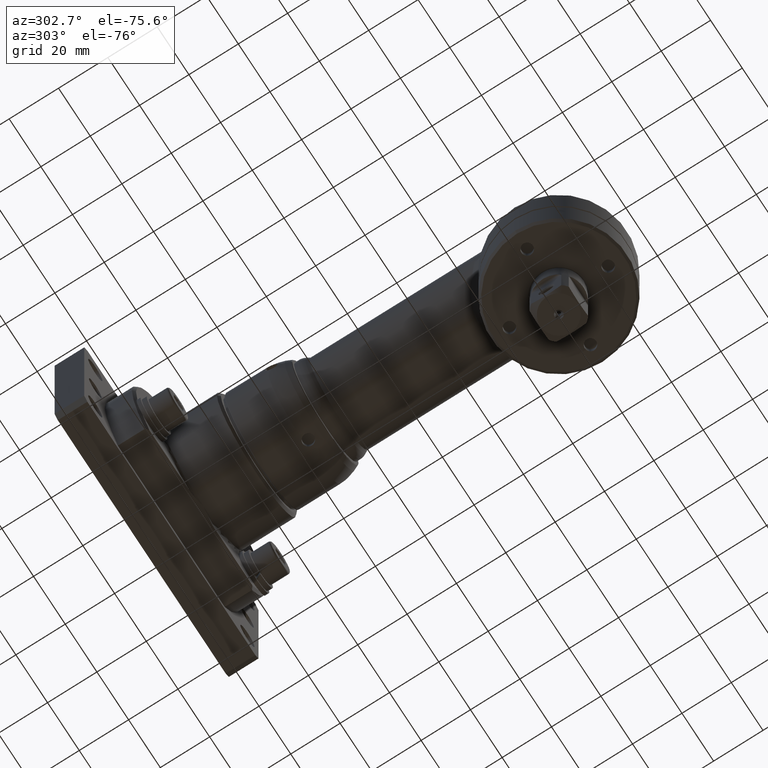
[diagram: clean part render]
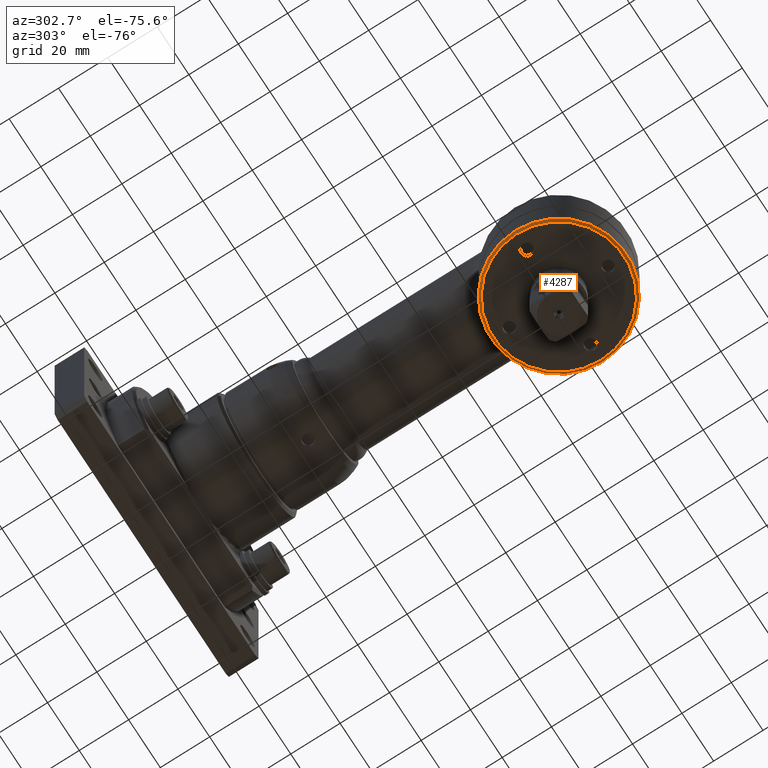
[diagram: same view with one face highlighted and labeled with its STEP entity id]
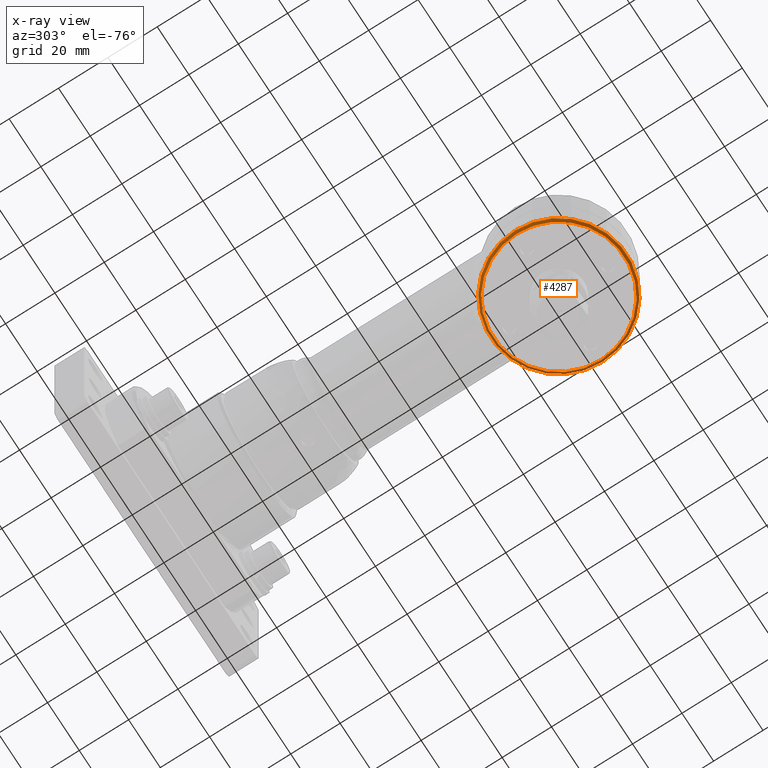
[diagram: x-ray of the same camera — body ghosted, the highlighted face saturated]
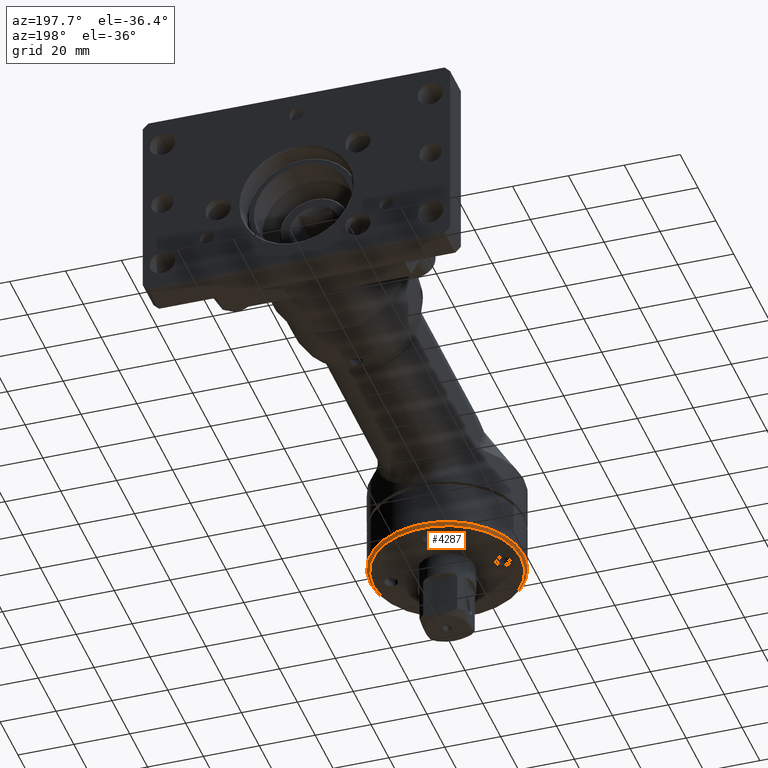
[diagram: same view with one face highlighted and labeled with its STEP entity id]
A machine part, auxiliary view. The second image highlights one B-rep face of the part: STEP entity #4287.
The next image is the same camera in x-ray: the body ghosted, the highlighted face saturated — about 0% of this face is hidden behind the body in this view.
A second angle (auxiliary view) of the same face is appended — the face is thin or edge-on in the first view.
In plain terms, the highlighted conical surface has half-angle 45 deg.
Its self-contained STEP definition (entity closure, byte-faithful):
#147=CONICAL_SURFACE('',#4589,27.,0.785398163397449);
#174=LINE('',#6734,#383);
#383=VECTOR('',#5263,27.);
#732=FACE_OUTER_BOUND('',#987,.T.);
#987=EDGE_LOOP('',(#2848,#2849,#2850,#2851,#2852));
#1286=CIRCLE('',#4570,26.5);
#1298=CIRCLE('',#4584,27.5);
#1299=CIRCLE('',#4585,27.5);
#1658=VERTEX_POINT('',#6696);
#1670=VERTEX_POINT('',#6723);
#1671=VERTEX_POINT('',#6725);
#2125=EDGE_CURVE('',#1658,#1658,#1286,.T.);
#2139=EDGE_CURVE('',#1671,#1670,#1298,.T.);
#2140=EDGE_CURVE('',#1670,#1671,#1299,.T.);
#2143=EDGE_CURVE('',#1671,#1658,#174,.T.);
#2848=ORIENTED_EDGE('',*,*,#2139,.T.);
#2849=ORIENTED_EDGE('',*,*,#2140,.T.);
#2850=ORIENTED_EDGE('',*,*,#2143,.T.);
#2851=ORIENTED_EDGE('',*,*,#2125,.T.);
#2852=ORIENTED_EDGE('',*,*,#2143,.F.);
#4287=ADVANCED_FACE('',(#732),#147,.T.);
#4570=AXIS2_PLACEMENT_3D('',#6697,#5221,#5222);
#4584=AXIS2_PLACEMENT_3D('',#6726,#5251,#5252);
#4585=AXIS2_PLACEMENT_3D('',#6727,#5253,#5254);
#4589=AXIS2_PLACEMENT_3D('',#6733,#5261,#5262);
#5221=DIRECTION('center_axis',(-2.44038375249505E-15,1.88737914186277E-15,
1.));
#5222=DIRECTION('ref_axis',(1.,4.36853639744296E-17,2.44038375249505E-15));
#5251=DIRECTION('center_axis',(2.44038375249505E-15,-1.88737914186277E-15,
-1.));
#5252=DIRECTION('ref_axis',(1.,4.36853639744296E-17,2.44038375249505E-15));
#5253=DIRECTION('center_axis',(2.44038375249505E-15,-1.88737914186277E-15,
-1.));
#5254=DIRECTION('ref_axis',(1.,4.36853639744296E-17,2.44038375249505E-15));
#5261=DIRECTION('center_axis',(-2.44038375249505E-15,1.88737914186277E-15,
1.));
#5262=DIRECTION('ref_axis',(1.,4.36853639744296E-17,2.44038375249505E-15));
#5263=DIRECTION('',(0.70710678118655,-1.21709276715274E-15,-0.707106781186545));
#6696=CARTESIAN_POINT('',(-26.5,-4.40297616306291E-15,-40.9999999999998));
#6697=CARTESIAN_POINT('Origin',(5.02105187650414E-15,-3.67322463124929E-29,
-40.9999999999997));
#6723=CARTESIAN_POINT('',(27.5,6.45650534881477E-15,-39.9999999999997));
#6725=CARTESIAN_POINT('',(-27.5,4.05381033022114E-15,-39.9999999999998));
#6726=CARTESIAN_POINT('Origin',(2.58066812400909E-15,1.88737914186274E-15,
-39.9999999999997));
#6727=CARTESIAN_POINT('Origin',(2.58066812400909E-15,1.88737914186274E-15,
-39.9999999999997));
#6733=CARTESIAN_POINT('Origin',(3.80086000025661E-15,9.4368957093135E-16,
-40.4999999999997));
#6734=CARTESIAN_POINT('',(-27.,-3.5423616140761E-15,-40.4999999999998));